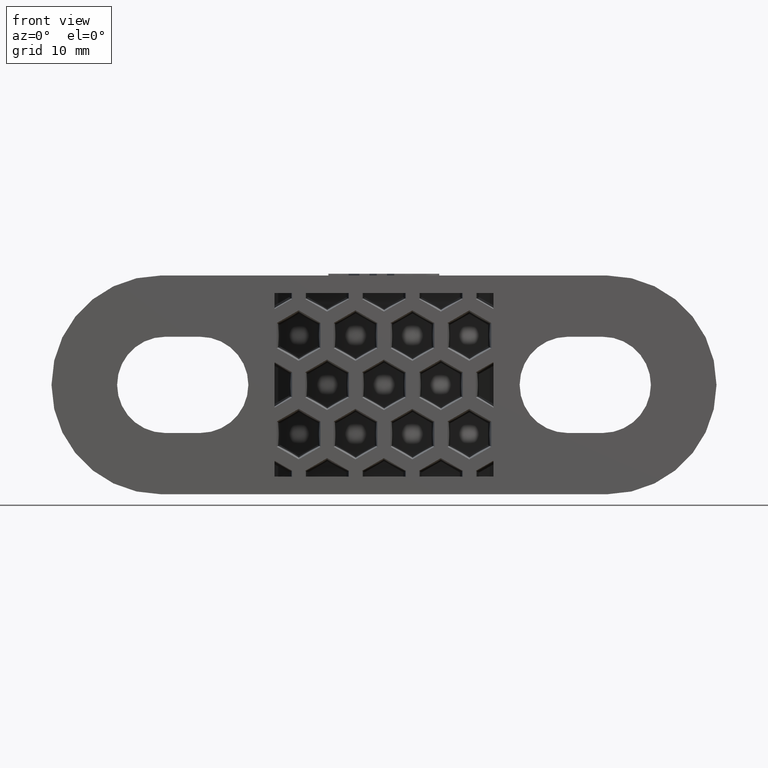
[diagram: clean part render]
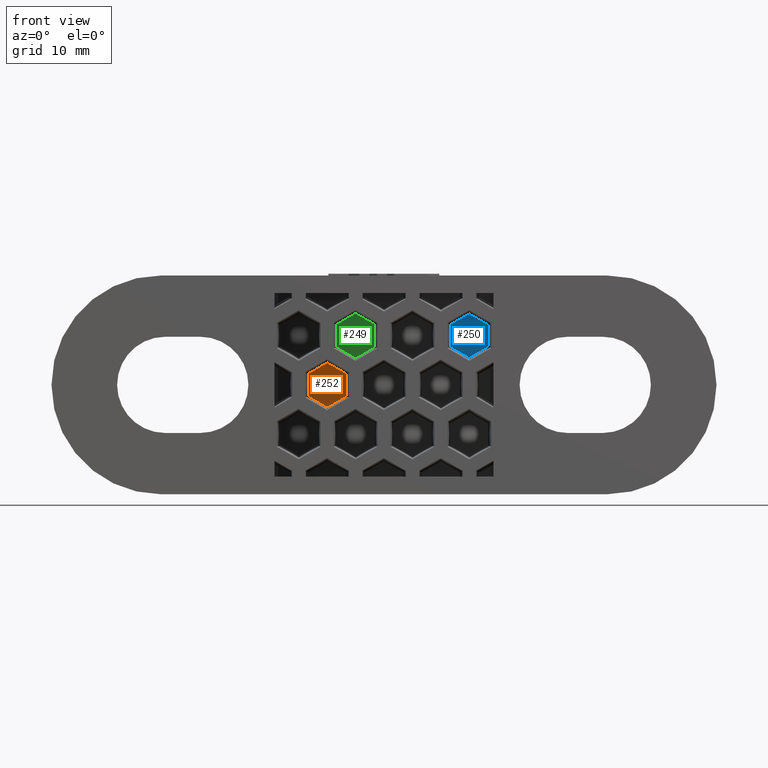
[diagram: same view with three faces highlighted in distinct colors, each labeled with its STEP entity id]
A machine part, front view with three faces highlighted in distinct colors.
Their STEP definitions:

[orange] entity #252 — the highlighted cylindrical surface (partial cylindrical patch) has radius 20.25 mm, axis along (0, 0, -1).
#252 = ADVANCED_FACE( '', ( #692 ), #693, .T. );
#692 = FACE_OUTER_BOUND( '', #1448, .T. );
#693 = CYLINDRICAL_SURFACE( '', #1449, 20.2500000000000 );
#1448 = EDGE_LOOP( '', ( #3274, #3275, #3276, #3277, #3278, #3279 ) );
#1449 = AXIS2_PLACEMENT_3D( '', #3280, #3281, #3282 );
#3274 = ORIENTED_EDGE( '', *, *, #4145, .F. );
#3275 = ORIENTED_EDGE( '', *, *, #4143, .F. );
#3276 = ORIENTED_EDGE( '', *, *, #4141, .F. );
#3277 = ORIENTED_EDGE( '', *, *, #4139, .F. );
#3278 = ORIENTED_EDGE( '', *, *, #4137, .F. );
#3279 = ORIENTED_EDGE( '', *, *, #4134, .F. );
#3280 = CARTESIAN_POINT( '', ( 0.000000000000000, 37.2500000000000, -10.5000000000000 ) );
#3281 = DIRECTION( '', ( 0.000000000000000, 0.000000000000000, -1.00000000000000 ) );
#3282 = DIRECTION( '', ( -1.00000000000000, 6.07153216591882E-017, 0.000000000000000 ) );
#4134 = EDGE_CURVE( '', #5052, #5053, #5054, .T. );
#4137 = EDGE_CURVE( '', #5053, #5057, #5058, .T. );
#4139 = EDGE_CURVE( '', #5057, #5060, #5061, .T. );
#4141 = EDGE_CURVE( '', #5060, #5063, #5064, .T. );
#4143 = EDGE_CURVE( '', #5063, #5066, #5067, .T. );
#4145 = EDGE_CURVE( '', #5066, #5052, #5069, .F. );
#5052 = VERTEX_POINT( '', #6383 );
#5053 = VERTEX_POINT( '', #6384 );
#5054 = ELLIPSE( '', #6385, 23.3862477409846, 20.2500000000000 );
#5057 = VERTEX_POINT( '', #6390 );
#5058 = ELLIPSE( '', #6391, 23.3862477409846, 20.2500000000000 );
#5060 = VERTEX_POINT( '', #6394 );
#5061 = LINE( '', #6395, #6396 );
#5063 = VERTEX_POINT( '', #6399 );
#5064 = ELLIPSE( '', #6400, 23.3862477409846, 20.2500000000000 );
#5066 = VERTEX_POINT( '', #6403 );
#5067 = ELLIPSE( '', #6404, 23.3862477409846, 20.2500000000000 );
#5069 = LINE( '', #6407, #6408 );
#6383 = CARTESIAN_POINT( '', ( -4.30481528633814, 17.4628560587812, -1.26739048535362 ) );
#6384 = CARTESIAN_POINT( '', ( -6.50000000000000, 18.0715615859893, -2.52251228383830 ) );
#6385 = AXIS2_PLACEMENT_3D( '', #7270, #7271, #7272 );
#6390 = CARTESIAN_POINT( '', ( -8.66923456602642, 18.9495390211281, -1.25240816063079 ) );
#6391 = AXIS2_PLACEMENT_3D( '', #7275, #7276, #7277 );
#6394 = CARTESIAN_POINT( '', ( -8.66923456602642, 18.9495390211281, 1.25240816063079 ) );
#6395 = CARTESIAN_POINT( '', ( -8.66923456602642, 18.9495390211281, -10.5000000000000 ) );
#6396 = VECTOR( '', #7279, 1000.00000000000 );
#6399 = CARTESIAN_POINT( '', ( -6.50000000000000, 18.0715615859893, 2.52251228383831 ) );
#6400 = AXIS2_PLACEMENT_3D( '', #7281, #7282, #7283 );
#6403 = CARTESIAN_POINT( '', ( -4.30481528633814, 17.4628560587812, 1.26739048535362 ) );
#6404 = AXIS2_PLACEMENT_3D( '', #7285, #7286, #7287 );
#6407 = CARTESIAN_POINT( '', ( -4.30481528633815, 17.4628560587813, -10.5000000000000 ) );
#6408 = VECTOR( '', #7289, 1000.00000000000 );
#7270 = CARTESIAN_POINT( '', ( 0.000000000000000, 37.2500000000000, 1.61681304319408 ) );
#7271 = DIRECTION( '', ( 0.499923847578195, 0.0174524064372835, -0.865893503920754 ) );
#7272 = DIRECTION( '', ( 0.865366346075250, 0.0302100515148758, 0.500228387706894 ) );
#7275 = CARTESIAN_POINT( '', ( 0.000000000000000, 37.2500000000000, -5.88874045627105 ) );
#7276 = DIRECTION( '', ( -0.499923847578196, 0.0174524064372835, -0.865893503920754 ) );
#7277 = DIRECTION( '', ( -0.865366346075250, 0.0302100515148758, 0.500228387706895 ) );
#7279 = DIRECTION( '', ( 0.000000000000000, 0.000000000000000, 1.00000000000000 ) );
#7281 = CARTESIAN_POINT( '', ( 0.000000000000000, 37.2500000000000, 5.88874045627105 ) );
#7282 = DIRECTION( '', ( -0.499923847578195, 0.0174524064372835, 0.865893503920754 ) );
#7283 = DIRECTION( '', ( 0.865366346075250, -0.0302100515148758, 0.500228387706894 ) );
#7285 = CARTESIAN_POINT( '', ( 0.000000000000000, 37.2500000000000, -1.61681304319409 ) );
#7286 = DIRECTION( '', ( 0.499923847578196, 0.0174524064372835, 0.865893503920754 ) );
#7287 = DIRECTION( '', ( -0.865366346075250, -0.0302100515148758, 0.500228387706894 ) );
#7289 = DIRECTION( '', ( 0.000000000000000, 0.000000000000000, 1.00000000000000 ) );

[blue] entity #250 — the highlighted cylindrical surface (partial cylindrical patch) has radius 20.25 mm, axis along (0, 0, -1).
#250 = ADVANCED_FACE( '', ( #688 ), #689, .T. );
#688 = FACE_OUTER_BOUND( '', #1444, .T. );
#689 = CYLINDRICAL_SURFACE( '', #1445, 20.2500000000000 );
#1444 = EDGE_LOOP( '', ( #3256, #3257, #3258, #3259, #3260, #3261 ) );
#1445 = AXIS2_PLACEMENT_3D( '', #3262, #3263, #3264 );
#3256 = ORIENTED_EDGE( '', *, *, #4116, .F. );
#3257 = ORIENTED_EDGE( '', *, *, #4114, .F. );
#3258 = ORIENTED_EDGE( '', *, *, #4112, .F. );
#3259 = ORIENTED_EDGE( '', *, *, #4110, .F. );
#3260 = ORIENTED_EDGE( '', *, *, #4108, .F. );
#3261 = ORIENTED_EDGE( '', *, *, #4105, .F. );
#3262 = CARTESIAN_POINT( '', ( 0.000000000000000, 37.2500000000000, -10.5000000000000 ) );
#3263 = DIRECTION( '', ( 0.000000000000000, 0.000000000000000, -1.00000000000000 ) );
#3264 = DIRECTION( '', ( -1.00000000000000, 6.07153216591882E-017, 0.000000000000000 ) );
#4105 = EDGE_CURVE( '', #5009, #5010, #5011, .T. );
#4108 = EDGE_CURVE( '', #5010, #5014, #5015, .T. );
#4110 = EDGE_CURVE( '', #5014, #5017, #5018, .T. );
#4112 = EDGE_CURVE( '', #5017, #5020, #5021, .T. );
#4114 = EDGE_CURVE( '', #5020, #5023, #5024, .T. );
#4116 = EDGE_CURVE( '', #5023, #5009, #5026, .F. );
#5009 = VERTEX_POINT( '', #6321 );
#5010 = VERTEX_POINT( '', #6322 );
#5011 = ELLIPSE( '', #6323, 23.3862477409846, 20.2500000000000 );
#5014 = VERTEX_POINT( '', #6328 );
#5015 = ELLIPSE( '', #6329, 23.3862477409846, 20.2500000000000 );
#5017 = VERTEX_POINT( '', #6332 );
#5018 = LINE( '', #6333, #6334 );
#5020 = VERTEX_POINT( '', #6337 );
#5021 = ELLIPSE( '', #6338, 23.3862477409846, 20.2500000000000 );
#5023 = VERTEX_POINT( '', #6341 );
#5024 = ELLIPSE( '', #6342, 23.3862477409846, 20.2500000000000 );
#5026 = LINE( '', #6345, #6346 );
#6321 = CARTESIAN_POINT( '', ( 11.8859694073766, 20.8552986838153, 4.39596261226915 ) );
#6322 = CARTESIAN_POINT( '', ( 9.75000000000000, 19.5017606507012, 3.13547903618822 ) );
#6323 = AXIS2_PLACEMENT_3D( '', #7221, #7222, #7223 );
#6328 = CARTESIAN_POINT( '', ( 7.57237963622284, 18.4691169897441, 4.37191542137929 ) );
#6329 = AXIS2_PLACEMENT_3D( '', #7226, #7227, #7228 );
#6332 = CARTESIAN_POINT( '', ( 7.57237963622283, 18.4691169897441, 6.88641482781840 ) );
#6333 = CARTESIAN_POINT( '', ( 7.57237963622283, 18.4691169897441, -10.5000000000000 ) );
#6334 = VECTOR( '', #7230, 1000.00000000000 );
#6337 = CARTESIAN_POINT( '', ( 9.74999999999999, 19.5017606507011, 8.12285121300947 ) );
#6338 = AXIS2_PLACEMENT_3D( '', #7232, #7233, #7234 );
#6341 = CARTESIAN_POINT( '', ( 11.8859694073766, 20.8552986838153, 6.86236763692855 ) );
#6342 = AXIS2_PLACEMENT_3D( '', #7236, #7237, #7238 );
#6345 = CARTESIAN_POINT( '', ( 11.8859694073766, 20.8552986838153, -10.5000000000000 ) );
#6346 = VECTOR( '', #7240, 1000.00000000000 );
#7221 = CARTESIAN_POINT( '', ( 0.000000000000000, 37.2500000000000, -2.13596370653848 ) );
#7222 = DIRECTION( '', ( 0.499923847578195, 0.0174524064372835, -0.865893503920754 ) );
#7223 = DIRECTION( '', ( 0.865366346075250, 0.0302100515148758, 0.500228387706894 ) );
#7226 = CARTESIAN_POINT( '', ( 0.000000000000000, 37.2500000000000, 9.12236654265922 ) );
#7227 = DIRECTION( '', ( -0.499923847578196, 0.0174524064372835, -0.865893503920754 ) );
#7228 = DIRECTION( '', ( -0.865366346075250, 0.0302100515148758, 0.500228387706894 ) );
#7230 = DIRECTION( '', ( 0.000000000000000, 0.000000000000000, 1.00000000000000 ) );
#7232 = CARTESIAN_POINT( '', ( 0.000000000000000, 37.2500000000000, 2.13596370653848 ) );
#7233 = DIRECTION( '', ( -0.499923847578196, 0.0174524064372835, 0.865893503920754 ) );
#7234 = DIRECTION( '', ( 0.865366346075250, -0.0302100515148758, 0.500228387706895 ) );
#7236 = CARTESIAN_POINT( '', ( 0.000000000000000, 37.2500000000000, 13.3942939557362 ) );
#7237 = DIRECTION( '', ( 0.499923847578196, 0.0174524064372835, 0.865893503920754 ) );
#7238 = DIRECTION( '', ( -0.865366346075250, -0.0302100515148758, 0.500228387706895 ) );
#7240 = DIRECTION( '', ( 0.000000000000000, 0.000000000000000, 1.00000000000000 ) );

[green] entity #249 — the highlighted cylindrical surface (partial cylindrical patch) has radius 20.25 mm, axis along (0, 0, -1).
#249 = ADVANCED_FACE( '', ( #686 ), #687, .T. );
#686 = FACE_OUTER_BOUND( '', #1442, .T. );
#687 = CYLINDRICAL_SURFACE( '', #1443, 20.2500000000000 );
#1442 = EDGE_LOOP( '', ( #3247, #3248, #3249, #3250, #3251, #3252 ) );
#1443 = AXIS2_PLACEMENT_3D( '', #3253, #3254, #3255 );
#3247 = ORIENTED_EDGE( '', *, *, #4104, .F. );
#3248 = ORIENTED_EDGE( '', *, *, #4102, .F. );
#3249 = ORIENTED_EDGE( '', *, *, #4100, .F. );
#3250 = ORIENTED_EDGE( '', *, *, #4098, .F. );
#3251 = ORIENTED_EDGE( '', *, *, #4096, .F. );
#3252 = ORIENTED_EDGE( '', *, *, #4093, .F. );
#3253 = CARTESIAN_POINT( '', ( 0.000000000000000, 37.2500000000000, -10.5000000000000 ) );
#3254 = DIRECTION( '', ( 0.000000000000000, 0.000000000000000, -1.00000000000000 ) );
#3255 = DIRECTION( '', ( -1.00000000000000, 6.07153216591882E-017, 0.000000000000000 ) );
#4093 = EDGE_CURVE( '', #4991, #4992, #4993, .T. );
#4096 = EDGE_CURVE( '', #4992, #4996, #4997, .T. );
#4098 = EDGE_CURVE( '', #4996, #4999, #5000, .T. );
#4100 = EDGE_CURVE( '', #4999, #5002, #5003, .T. );
#4102 = EDGE_CURVE( '', #5002, #5005, #5006, .T. );
#4104 = EDGE_CURVE( '', #5005, #4991, #5008, .F. );
#4991 = VERTEX_POINT( '', #6295 );
#4992 = VERTEX_POINT( '', #6296 );
#4993 = ELLIPSE( '', #6297, 23.3862477409846, 20.2500000000000 );
#4996 = VERTEX_POINT( '', #6302 );
#4997 = ELLIPSE( '', #6303, 23.3862477409846, 20.2500000000000 );
#4999 = VERTEX_POINT( '', #6306 );
#5000 = LINE( '', #6307, #6308 );
#5002 = VERTEX_POINT( '', #6311 );
#5003 = ELLIPSE( '', #6312, 23.3862477409846, 20.2500000000000 );
#5005 = VERTEX_POINT( '', #6315 );
#5006 = ELLIPSE( '', #6316, 23.3862477409846, 20.2500000000000 );
#5008 = LINE( '', #6319, #6320 );
#6295 = CARTESIAN_POINT( '', ( -1.04720906320461, 17.0270958273065, 4.35738318427157 ) );
#6296 = CARTESIAN_POINT( '', ( -3.25000000000000, 17.2625039086933, 3.09034598160126 ) );
#6297 = AXIS2_PLACEMENT_3D( '', #7201, #7202, #7203 );
#6302 = CARTESIAN_POINT( '', ( -5.44026924482506, 17.7444630798378, 4.36461258650134 ) );
#6303 = AXIS2_PLACEMENT_3D( '', #7206, #7207, #7208 );
#6306 = CARTESIAN_POINT( '', ( -5.44026924482507, 17.7444630798378, 6.89371766269636 ) );
#6307 = CARTESIAN_POINT( '', ( -5.44026924482507, 17.7444630798378, -10.5000000000000 ) );
#6308 = VECTOR( '', #7210, 1000.00000000000 );
#6311 = CARTESIAN_POINT( '', ( -3.25000000000000, 17.2625039086933, 8.16798426759644 ) );
#6312 = AXIS2_PLACEMENT_3D( '', #7212, #7213, #7214 );
#6315 = CARTESIAN_POINT( '', ( -1.04720906320462, 17.0270958273065, 6.90094706492613 ) );
#6316 = AXIS2_PLACEMENT_3D( '', #7216, #7217, #7218 );
#6319 = CARTESIAN_POINT( '', ( -1.04720906320463, 17.0270958273066, -10.5000000000000 ) );
#6320 = VECTOR( '', #7220, 1000.00000000000 );
#7201 = CARTESIAN_POINT( '', ( 0.000000000000000, 37.2500000000000, 5.36958979292665 ) );
#7202 = DIRECTION( '', ( 0.499923847578195, 0.0174524064372835, -0.865893503920754 ) );
#7203 = DIRECTION( '', ( 0.865366346075250, 0.0302100515148758, 0.500228387706894 ) );
#7206 = CARTESIAN_POINT( '', ( 0.000000000000000, 37.2500000000000, 1.61681304319409 ) );
#7207 = DIRECTION( '', ( -0.499923847578196, 0.0174524064372835, -0.865893503920754 ) );
#7208 = DIRECTION( '', ( -0.865366346075250, 0.0302100515148758, 0.500228387706894 ) );
#7210 = DIRECTION( '', ( 0.000000000000000, 0.000000000000000, 1.00000000000000 ) );
#7212 = CARTESIAN_POINT( '', ( 0.000000000000000, 37.2500000000000, 9.64151720600362 ) );
#7213 = DIRECTION( '', ( -0.499923847578196, 0.0174524064372835, 0.865893503920754 ) );
#7214 = DIRECTION( '', ( 0.865366346075250, -0.0302100515148758, 0.500228387706895 ) );
#7216 = CARTESIAN_POINT( '', ( 0.000000000000000, 37.2500000000000, 5.88874045627105 ) );
#7217 = DIRECTION( '', ( 0.499923847578196, 0.0174524064372835, 0.865893503920754 ) );
#7218 = DIRECTION( '', ( -0.865366346075250, -0.0302100515148758, 0.500228387706895 ) );
#7220 = DIRECTION( '', ( 0.000000000000000, 0.000000000000000, 1.00000000000000 ) );